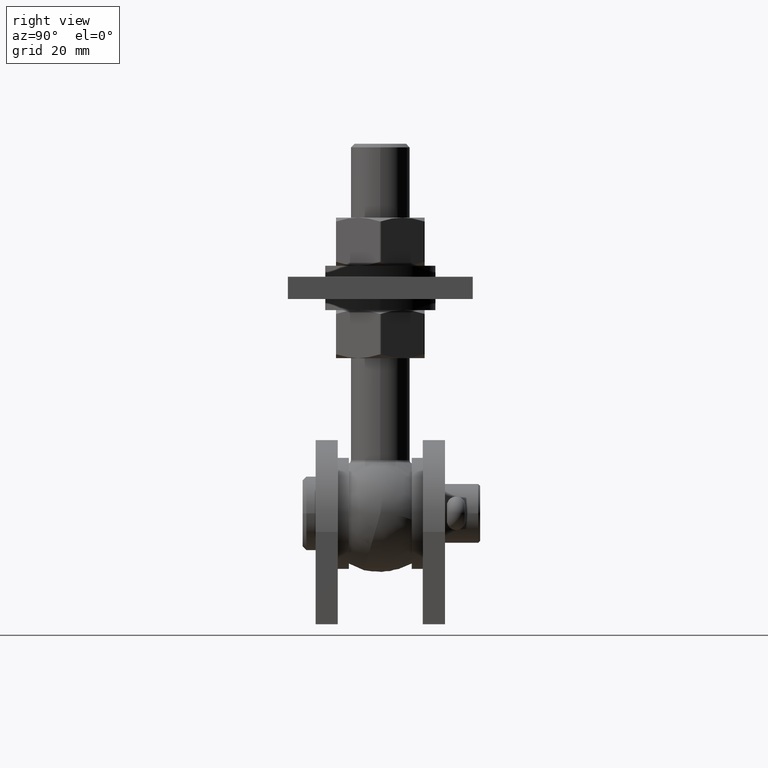
[diagram: clean part render]
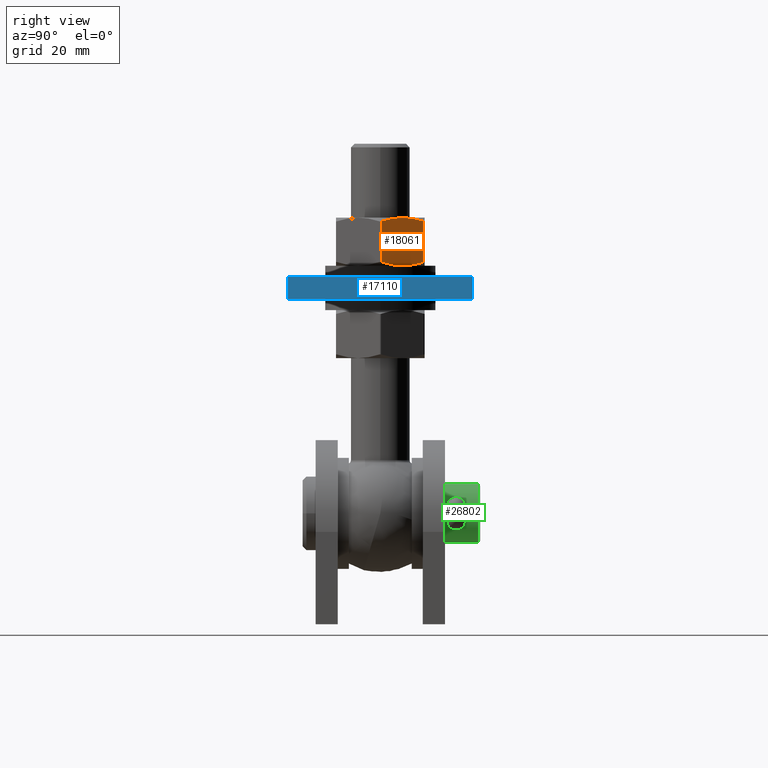
[diagram: same view with three faces highlighted in distinct colors, each labeled with its STEP entity id]
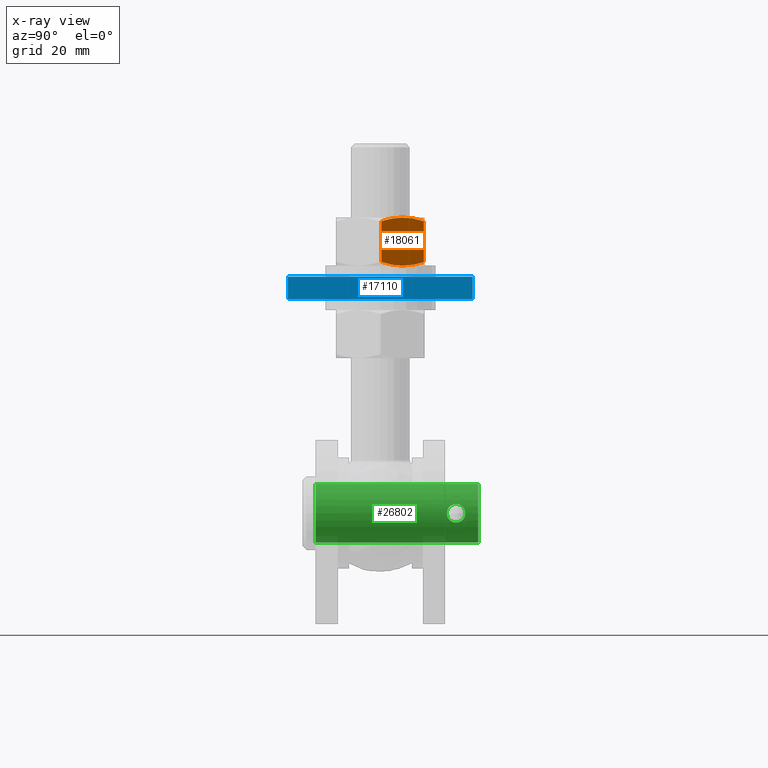
[diagram: x-ray of the same camera — body ghosted, the three highlighted faces saturated]
A machine part, right view with three faces highlighted in distinct colors.
The next image is the same camera in x-ray (body ghosted, the three faces saturated) — at least one of them is partly hidden behind the body in this view.
Their STEP definitions:

[orange] entity #18061 — the highlighted planar face has unit normal (-0.866, -0.5, -0).
#109 = CARTESIAN_POINT ( 'NONE',  ( 12.62147978884749477, -6.062901251027057903, -2.138955739012437185 ) ) ;
#252 = EDGE_CURVE ( 'NONE', #9669, #8957, #5283, .T. ) ;
#952 = CARTESIAN_POINT ( 'NONE',  ( 11.51586903937519679, -6.406434174578384599, -4.053929730492755290 ) ) ;
#1568 = CARTESIAN_POINT ( 'NONE',  ( 13.71206889325361189, 5.510220883462368491, -0.2499999999999974465 ) ) ;
#2060 = EDGE_CURVE ( 'NONE', #18493, #9669, #13935, .T. ) ;
#2565 = CARTESIAN_POINT ( 'NONE',  ( 13.71206889325393341, -5.510220883462202401, -0.2499999999994518274 ) ) ;
#2682 = CARTESIAN_POINT ( 'NONE',  ( 8.161051184807732284, -6.062063013138934586, -9.864644704742827841 ) ) ;
#3300 = CARTESIAN_POINT ( 'NONE',  ( 10.39230484541326227, 6.500000000000005329, -5.999999999999998224 ) ) ;
#3903 = VERTEX_POINT ( 'NONE', #22203 ) ;
#5089 = CARTESIAN_POINT ( 'NONE',  ( 10.95744704231418964, -6.500000000000014211, -5.021145001466503111 ) ) ;
#5283 = B_SPLINE_CURVE_WITH_KNOTS ( 'NONE', 3,
 ( #2565, #26555, #109, #952, #5089, #9470 ),
 .UNSPECIFIED., .F., .F.,
 ( 4, 2, 4 ),
 ( 0.0002976420579474610461, 0.003654043546377305426, 0.007010445034807149915 ),
 .UNSPECIFIED. ) ;
#5368 = CARTESIAN_POINT ( 'NONE',  ( 7.615867869546497637, 5.813954435900760664, -10.80892990621412153 ) ) ;
#5413 = VECTOR ( 'NONE', #18836, 1000.000000000000000 ) ;
#5708 = DIRECTION ( 'NONE',  ( -0.000000000000000000, 1.000000000000000000, 1.372308401475337047E-42 ) ) ;
#6044 = VERTEX_POINT ( 'NONE', #12280 ) ;
#6584 = ORIENTED_EDGE ( 'NONE', *, *, #7476, .T. ) ;
#6816 = CARTESIAN_POINT ( 'NONE',  ( 9.828025114344686841, -6.476788126677502255, -6.977361163892073392 ) ) ;
#6887 = EDGE_CURVE ( 'NONE', #14608, #6044, #12632, .T. ) ;
#7064 = CARTESIAN_POINT ( 'NONE',  ( 10.95658457648184658, 6.476788126677501367, -5.022638836107909732 ) ) ;
#7065 = CARTESIAN_POINT ( 'NONE',  ( 10.39230484541326938, -6.500000000000005329, -5.999999999999998224 ) ) ;
#7466 = CARTESIAN_POINT ( 'NONE',  ( 9.268740651451333079, 6.406434174578382823, -7.946070269507237605 ) ) ;
#7476 = EDGE_CURVE ( 'NONE', #3903, #14608, #26208, .T. ) ;
#8036 = ORIENTED_EDGE ( 'NONE', *, *, #252, .T. ) ;
#8892 = CARTESIAN_POINT ( 'NONE',  ( 8.990347189129836991, -6.320028020092784082, -8.428261890743076634 ) ) ;
#8957 = VERTEX_POINT ( 'NONE', #7065 ) ;
#9229 = CARTESIAN_POINT ( 'NONE',  ( 11.79426250169669466, 6.320028020092783194, -3.571738109256910043 ) ) ;
#9420 = AXIS2_PLACEMENT_3D ( 'NONE', #16699, #12240, #20980 ) ;
#9470 = CARTESIAN_POINT ( 'NONE',  ( 10.39230484541326938, -6.500000000000005329, -5.999999999999998224 ) ) ;
#9669 = VERTEX_POINT ( 'NONE', #15295 ) ;
#11030 = CARTESIAN_POINT ( 'NONE',  ( 10.39230484541326938, -6.500000000000005329, -5.999999999999998224 ) ) ;
#11176 = CARTESIAN_POINT ( 'NONE',  ( 10.39230484541326227, 6.500000000000005329, -5.999999999999998224 ) ) ;
#11396 = ORIENTED_EDGE ( 'NONE', *, *, #13748, .T. ) ;
#11465 = CARTESIAN_POINT ( 'NONE',  ( 12.62355850601880292, 6.062063013138936363, -2.135355295257160613 ) ) ;
#11521 = ORIENTED_EDGE ( 'NONE', *, *, #6887, .T. ) ;
#11880 = B_SPLINE_CURVE_WITH_KNOTS ( 'NONE', 3,
 ( #11176, #17917, #7064, #15538, #9229, #11465, #13347, #13728 ),
 .UNSPECIFIED., .F., .F.,
 ( 4, 2, 2, 4 ),
 ( 0.007010445034807143844, 0.008682192066603519609, 0.01035393909839989537, 0.01369743316199264691 ),
 .UNSPECIFIED. ) ;
#12240 = DIRECTION ( 'NONE',  ( -0.8660254037844382635, 0.000000000000000000, 0.5000000000000008882 ) ) ;
#12280 = CARTESIAN_POINT ( 'NONE',  ( 10.39230484541326227, 6.500000000000005329, -5.999999999999998224 ) ) ;
#12632 = B_SPLINE_CURVE_WITH_KNOTS ( 'NONE', 3,
 ( #20598, #5368, #13951, #7466, #22490, #3300 ),
 .UNSPECIFIED., .F., .F.,
 ( 4, 2, 4 ),
 ( 0.0002976420579474647866, 0.003654043546377304559, 0.007010445034807143844 ),
 .UNSPECIFIED. ) ;
#13134 = CARTESIAN_POINT ( 'NONE',  ( 7.072540797572904658, -5.510220883462424446, -11.74999999999998757 ) ) ;
#13347 = CARTESIAN_POINT ( 'NONE',  ( 13.17005630627476620, 5.813219605597458539, -1.188793338989204251 ) ) ;
#13728 = CARTESIAN_POINT ( 'NONE',  ( 13.71206889325361189, 5.510220883462368491, -0.2499999999999974465 ) ) ;
#13748 = EDGE_CURVE ( 'NONE', #8957, #3903, #27562, .T. ) ;
#13935 = LINE ( 'NONE', #14267, #5413 ) ;
#13951 = CARTESIAN_POINT ( 'NONE',  ( 8.163129901979042202, 6.062901251027059679, -9.861044260987551269 ) ) ;
#14186 = ORIENTED_EDGE ( 'NONE', *, *, #25578, .T. ) ;
#14267 = CARTESIAN_POINT ( 'NONE',  ( 13.71206889325361189, 6.500000000000005329, -0.2499999999999975020 ) ) ;
#14608 = VERTEX_POINT ( 'NONE', #26130 ) ;
#14759 = EDGE_LOOP ( 'NONE', ( #14186, #18653, #8036, #11396, #6584, #11521 ) ) ;
#15295 = CARTESIAN_POINT ( 'NONE',  ( 13.71206889325393341, -5.510220883462202401, -0.2499999999994518274 ) ) ;
#15538 = CARTESIAN_POINT ( 'NONE',  ( 11.51623569666507763, 6.386760395136424684, -4.053294661437721658 ) ) ;
#15686 = CARTESIAN_POINT ( 'NONE',  ( 10.11082040635887580, -6.500000000000014211, -6.487545349982224430 ) ) ;
#16699 = CARTESIAN_POINT ( 'NONE',  ( 13.85640646055101755, 6.500000000000005329, 2.748183035367769064E-17 ) ) ;
#17917 = CARTESIAN_POINT ( 'NONE',  ( 10.67378928446765585, 6.500000000000014211, -5.512454650017772018 ) ) ;
#18061 = ADVANCED_FACE ( 'NONE', ( #21518 ), #27290, .F. ) ;
#18493 = VERTEX_POINT ( 'NONE', #1568 ) ;
#18653 = ORIENTED_EDGE ( 'NONE', *, *, #2060, .T. ) ;
#18836 = DIRECTION ( 'NONE',  ( 0.000000000000000000, -1.000000000000000000, -1.372308401475337047E-42 ) ) ;
#20459 = VECTOR ( 'NONE', #5708, 1000.000000000000000 ) ;
#20598 = CARTESIAN_POINT ( 'NONE',  ( 7.072540797572592908, 5.510220883462202401, -11.75000000000053113 ) ) ;
#20980 = DIRECTION ( 'NONE',  ( 0.5000000000000007772, 0.000000000000000000, 0.8660254037844381525 ) ) ;
#21518 = FACE_OUTER_BOUND ( 'NONE', #14759, .T. ) ;
#21773 = CARTESIAN_POINT ( 'NONE',  ( 7.614553384551769888, -5.813219605597463868, -10.81120666101078598 ) ) ;
#22135 = CARTESIAN_POINT ( 'NONE',  ( 9.268373994161455798, -6.386760395136426460, -7.946705338562263243 ) ) ;
#22203 = CARTESIAN_POINT ( 'NONE',  ( 7.072540797572904658, -5.510220883462424446, -11.74999999999998757 ) ) ;
#22490 = CARTESIAN_POINT ( 'NONE',  ( 9.827162648512342003, 6.500000000000014211, -6.978854998533490672 ) ) ;
#25269 = CARTESIAN_POINT ( 'NONE',  ( 7.072540797572905547, 6.500000000000005329, -11.74999999999998934 ) ) ;
#25578 = EDGE_CURVE ( 'NONE', #6044, #18493, #11880, .T. ) ;
#26130 = CARTESIAN_POINT ( 'NONE',  ( 7.072540797572592908, 5.510220883462202401, -11.75000000000053113 ) ) ;
#26208 = LINE ( 'NONE', #25269, #20459 ) ;
#26555 = CARTESIAN_POINT ( 'NONE',  ( 13.16874182128003135, -5.813954435900757112, -1.191070093785864259 ) ) ;
#27290 = PLANE ( 'NONE',  #9420 ) ;
#27562 = B_SPLINE_CURVE_WITH_KNOTS ( 'NONE', 3,
 ( #11030, #15686, #6816, #22135, #8892, #2682, #21773, #13134 ),
 .UNSPECIFIED., .F., .F.,
 ( 4, 2, 2, 4 ),
 ( 0.007010445034807149915, 0.008682192066603526548, 0.01035393909839990578, 0.01369743316199265905 ),
 .UNSPECIFIED. ) ;

[blue] entity #17110 — the highlighted planar face has unit normal (-1, 0, 0).
#345 = CARTESIAN_POINT ( 'NONE',  ( 70.00000000000002842, 24.99999999999998579, 3.000000000000000000 ) ) ;
#1453 = ORIENTED_EDGE ( 'NONE', *, *, #4550, .T. ) ;
#2414 = PLANE ( 'NONE',  #13272 ) ;
#2944 = CARTESIAN_POINT ( 'NONE',  ( 70.00000000000002842, 24.99999999999998579, 3.000000000000000000 ) ) ;
#3455 = VERTEX_POINT ( 'NONE', #18814 ) ;
#4079 = VERTEX_POINT ( 'NONE', #26837 ) ;
#4550 = EDGE_CURVE ( 'NONE', #4079, #3455, #26658, .T. ) ;
#4625 = DIRECTION ( 'NONE',  ( -0.000000000000000000, -0.000000000000000000, -1.000000000000000000 ) ) ;
#7532 = LINE ( 'NONE', #23115, #23847 ) ;
#9751 = LINE ( 'NONE', #19584, #26388 ) ;
#10411 = EDGE_CURVE ( 'NONE', #3455, #23737, #22723, .T. ) ;
#11431 = VERTEX_POINT ( 'NONE', #2944 ) ;
#12420 = EDGE_CURVE ( 'NONE', #11431, #23737, #9751, .T. ) ;
#13272 = AXIS2_PLACEMENT_3D ( 'NONE', #345, #26410, #15328 ) ;
#13858 = ORIENTED_EDGE ( 'NONE', *, *, #18535, .F. ) ;
#14397 = FACE_OUTER_BOUND ( 'NONE', #19124, .T. ) ;
#14660 = DIRECTION ( 'NONE',  ( -0.000000000000000000, 1.000000000000000000, -0.000000000000000000 ) ) ;
#15328 = DIRECTION ( 'NONE',  ( 0.000000000000000000, 0.000000000000000000, 1.000000000000000000 ) ) ;
#17110 = ADVANCED_FACE ( 'NONE', ( #14397 ), #2414, .F. ) ;
#18535 = EDGE_CURVE ( 'NONE', #4079, #11431, #7532, .T. ) ;
#18814 = CARTESIAN_POINT ( 'NONE',  ( 70.00000000000002842, -25.00000000000001421, -3.000000000000000000 ) ) ;
#19124 = EDGE_LOOP ( 'NONE', ( #22321, #22223, #13858, #1453 ) ) ;
#19584 = CARTESIAN_POINT ( 'NONE',  ( 70.00000000000002842, 24.99999999999998579, 3.000000000000000000 ) ) ;
#19686 = VECTOR ( 'NONE', #14660, 1000.000000000000000 ) ;
#19857 = CARTESIAN_POINT ( 'NONE',  ( 70.00000000000002842, -25.00000000000001421, 3.000000000000000000 ) ) ;
#21941 = DIRECTION ( 'NONE',  ( -0.000000000000000000, -0.000000000000000000, -1.000000000000000000 ) ) ;
#22223 = ORIENTED_EDGE ( 'NONE', *, *, #12420, .F. ) ;
#22272 = VECTOR ( 'NONE', #21941, 1000.000000000000000 ) ;
#22321 = ORIENTED_EDGE ( 'NONE', *, *, #10411, .T. ) ;
#22723 = LINE ( 'NONE', #23111, #19686 ) ;
#23111 = CARTESIAN_POINT ( 'NONE',  ( 70.00000000000002842, 24.99999999999998579, -3.000000000000000000 ) ) ;
#23115 = CARTESIAN_POINT ( 'NONE',  ( 70.00000000000002842, 24.99999999999998579, 3.000000000000000000 ) ) ;
#23737 = VERTEX_POINT ( 'NONE', #26243 ) ;
#23847 = VECTOR ( 'NONE', #25092, 1000.000000000000000 ) ;
#25092 = DIRECTION ( 'NONE',  ( -0.000000000000000000, 1.000000000000000000, -0.000000000000000000 ) ) ;
#26243 = CARTESIAN_POINT ( 'NONE',  ( 70.00000000000002842, 24.99999999999998579, -3.000000000000000000 ) ) ;
#26388 = VECTOR ( 'NONE', #4625, 1000.000000000000000 ) ;
#26410 = DIRECTION ( 'NONE',  ( -1.000000000000000000, 0.000000000000000000, 0.000000000000000000 ) ) ;
#26658 = LINE ( 'NONE', #19857, #22272 ) ;
#26837 = CARTESIAN_POINT ( 'NONE',  ( 70.00000000000002842, -25.00000000000001421, 3.000000000000000000 ) ) ;

[green] entity #26802 — the highlighted cylindrical surface (bore or boss wall) has radius 8 mm, axis along (0, 1, 0).
#313 = AXIS2_PLACEMENT_3D ( 'NONE', #20867, #25019, #1481 ) ;
#719 = CARTESIAN_POINT ( 'NONE',  ( -1.986805928927171561, 15.97387670080328093, -7.749927903428770470 ) ) ;
#805 = CARTESIAN_POINT ( 'NONE',  ( -1.257088732395347908, 15.33297316522367026, -7.901799003784194753 ) ) ;
#973 = CARTESIAN_POINT ( 'NONE',  ( -0.3294158532848766030, 19.98361924732722628, -7.994837621757268309 ) ) ;
#1193 = CYLINDRICAL_SURFACE ( 'NONE', #8390, 8.000000000000000000 ) ;
#1230 = EDGE_LOOP ( 'NONE', ( #11493 ) ) ;
#1481 = DIRECTION ( 'NONE',  ( 0.000000000000000000, 0.000000000000000000, 1.000000000000000000 ) ) ;
#1762 = CARTESIAN_POINT ( 'NONE',  ( -2.483628429911565849, 17.82934057578778209, 7.604783344344083318 ) ) ;
#1860 = CARTESIAN_POINT ( 'NONE',  ( 1.109816439791320830, 19.74609997338682277, 7.924100809522563793 ) ) ;
#1968 = CARTESIAN_POINT ( 'NONE',  ( -0.3307102782286334697, 19.98350243605358401, 7.994800231452924066 ) ) ;
#2051 = CARTESIAN_POINT ( 'NONE',  ( -2.183009610834927727, 16.23893426180372757, 7.697500615899231846 ) ) ;
#2137 = CARTESIAN_POINT ( 'NONE',  ( 2.483281963866850628, 17.83171832081140806, 7.604896650065444241 ) ) ;
#2704 = CARTESIAN_POINT ( 'NONE',  ( 0.6498544130699831500, 15.08034409068491755, -7.975199005458871504 ) ) ;
#3129 = CARTESIAN_POINT ( 'NONE',  ( 2.419433607445526935, 18.15047096790310022, -7.625449243972107105 ) ) ;
#3319 = CARTESIAN_POINT ( 'NONE',  ( 1.882127203182996089, 19.15342788087603054, -7.776335001858096341 ) ) ;
#3398 = CARTESIAN_POINT ( 'NONE',  ( 2.500000000000000444, 17.50000000000000000, -7.599342076785334577 ) ) ;
#3414 = CARTESIAN_POINT ( 'NONE',  ( -2.500069680191711718, 17.33724957444216130, -7.599319153687524420 ) ) ;
#3488 = CARTESIAN_POINT ( 'NONE',  ( 1.986900504899591136, 19.02603993390240333, -7.749905930963728373 ) ) ;
#3640 = CARTESIAN_POINT ( 'NONE',  ( -1.255410537178604846, 15.33192918265424787, 7.902080341921111639 ) ) ;
#3729 = CARTESIAN_POINT ( 'NONE',  ( -1.526387645314500885, 15.51336278044615646, 7.854238989441713947 ) ) ;
#3816 = CARTESIAN_POINT ( 'NONE',  ( 1.997603995530615961, 15.96226738855686555, 7.750145230234156024 ) ) ;
#3920 = CARTESIAN_POINT ( 'NONE',  ( 1.653987708693678726, 15.61835564298028523, 7.828034099482484187 ) ) ;
#4099 = CARTESIAN_POINT ( 'NONE',  ( 2.483937512605597142, 17.17275755852223895, 7.604682343639957764 ) ) ;
#4107 = CARTESIAN_POINT ( 'NONE',  ( -2.499929864535031854, 17.66488413883391928, -7.599365149657032248 ) ) ;
#4200 = CARTESIAN_POINT ( 'NONE',  ( 0.6518825253712040579, 19.91917964970361155, 7.975053539561216098 ) ) ;
#4957 = CARTESIAN_POINT ( 'NONE',  ( -0.1652675853009770990, 15.00003295635618805, -7.999989701138875198 ) ) ;
#4966 = CARTESIAN_POINT ( 'NONE',  ( -1.652961987314623293, 19.38262739202769325, -7.828261419731129322 ) ) ;
#5046 = CARTESIAN_POINT ( 'NONE',  ( -1.113149310714817819, 15.25543002194366693, -7.923661774846487482 ) ) ;
#5123 = CARTESIAN_POINT ( 'NONE',  ( 2.500000000000000888, 17.33370939182614379, -7.599342076785335465 ) ) ;
#5364 = CARTESIAN_POINT ( 'NONE',  ( -2.370871776496314087, 18.30965859507078264, -7.640892879727226195 ) ) ;
#6010 = CARTESIAN_POINT ( 'NONE',  ( 2.499964080456524407, 17.66532639632386292, 7.599353893447284847 ) ) ;
#6185 = CARTESIAN_POINT ( 'NONE',  ( 1.882603535671692141, 19.15300575582690357, 7.776233538463531936 ) ) ;
#6293 = CARTESIAN_POINT ( 'NONE',  ( -1.110972981611749510, 19.74551640307962685, 7.923935220853760342 ) ) ;
#6888 = CARTESIAN_POINT ( 'NONE',  ( -2.167110237998277622, 18.75699637097954664, -7.701455134621489229 ) ) ;
#6943 = CARTESIAN_POINT ( 'NONE',  ( 2.500000000000000444, 17.50000000000000000, -7.599342076785334577 ) ) ;
#7132 = CARTESIAN_POINT ( 'NONE',  ( 2.244831491128288281, 16.38760192801666093, -7.678869690883504795 ) ) ;
#7218 = CARTESIAN_POINT ( 'NONE',  ( -1.526411084467720558, 15.51345863748821863, -7.854219807118614227 ) ) ;
#7318 = CARTESIAN_POINT ( 'NONE',  ( -0.8086627177055204507, 15.12865852662890909, -7.960501361038853751 ) ) ;
#7456 = VERTEX_POINT ( 'NONE', #26772 ) ;
#7579 = CARTESIAN_POINT ( 'NONE',  ( -1.256011559902790786, 19.66766706706732393, -7.901973980229364258 ) ) ;
#7857 = CARTESIAN_POINT ( 'NONE',  ( 1.261368413420339785, 19.68285698600946887, -7.905728187793180872 ) ) ;
#7921 = CARTESIAN_POINT ( 'NONE',  ( 6.491660507756957799E-15, 15.00000000000000000, 7.999999999999998224 ) ) ;
#8028 = CIRCLE ( 'NONE', #313, 8.000000000000000000 ) ;
#8126 = AXIS2_PLACEMENT_3D ( 'NONE', #19204, #14555, #12472 ) ;
#8296 = CARTESIAN_POINT ( 'NONE',  ( -1.527364626506923617, 19.48584607336621843, 7.854040797498008430 ) ) ;
#8390 = AXIS2_PLACEMENT_3D ( 'NONE', #21278, #21097, #10160 ) ;
#8479 = CARTESIAN_POINT ( 'NONE',  ( 2.500035801144603997, 17.33576171612707029, 7.599330299073756123 ) ) ;
#9155 = B_SPLINE_CURVE_WITH_KNOTS ( 'NONE', 3,
 ( #7921, #22934, #27486, #14306, #14594, #18878, #3640, #3729, #18596, #10700, #2051, #12795, #19248, #25575, #23408, #12604, #1762, #25676, #27947, #12978, #25774, #10406, #17255, #19142, #8296, #14964, #6293, #23490, #16965, #1968, #17151, #23789, #27773, #4200, #21517, #1860, #25857, #28155, #23590, #6185, #25949, #19055, #15152, #12897, #10797, #2137, #6010, #8479, #4099, #15057, #12693, #10512, #3816, #3920, #21245, #19344, #23696, #14767, #19434, #28048, #17050, #10595 ),
 .UNSPECIFIED., .T., .F.,
 ( 4, 2, 2, 2, 2, 2, 2, 2, 2, 2, 2, 2, 2, 2, 2, 2, 2, 2, 2, 2, 2, 2, 2, 2, 2, 2, 2, 2, 2, 2, 4 ),
 ( 0.000000000000000000, 0.0004915419920949418587, 0.0009830839841898837174, 0.001474625976284825793, 0.001966167968379767435, 0.002949251952569652020, 0.003440793944664589325, 0.003932335936759526196, 0.004423877928854464368, 0.004915419920949400806, 0.005406961913044338978, 0.005898503905139276283, 0.006390045897234213589, 0.006881587889329151761, 0.007373129881424088199, 0.007864671873519026371, 0.008356213865613965411, 0.008847755857708904451, 0.009339297849803840021, 0.009830839841898779061, 0.01032238183399371810, 0.01081392382608865714, 0.01130546581818359618, 0.01179700781027853349, 0.01228854980237347079, 0.01278009179446840983, 0.01376317577865828617, 0.01425471777075322521, 0.01474625976284816078, 0.01523780175494309982, 0.01572934374703803886 ),
 .UNSPECIFIED. ) ;
#9216 = CARTESIAN_POINT ( 'NONE',  ( 0.8092524579111949334, 15.12898415107189010, -7.960409877899648379 ) ) ;
#9321 = CARTESIAN_POINT ( 'NONE',  ( 2.419263071386917208, 16.84882918564273879, -7.625503725031471447 ) ) ;
#9512 = CARTESIAN_POINT ( 'NONE',  ( 1.261085162316974762, 15.31686303695841112, -7.905803189592722546 ) ) ;
#9959 = CARTESIAN_POINT ( 'NONE',  ( 2.245068531183318949, 18.61195872389447814, -7.678800899694542714 ) ) ;
#10057 = CARTESIAN_POINT ( 'NONE',  ( -1.525758259588304799, 19.48705996023163323, -7.854350358631152496 ) ) ;
#10160 = DIRECTION ( 'NONE',  ( 0.000000000000000000, 0.000000000000000000, 1.000000000000000000 ) ) ;
#10406 = CARTESIAN_POINT ( 'NONE',  ( -1.987350670656298890, 19.02537408350266546, 7.749785271947251530 ) ) ;
#10512 = CARTESIAN_POINT ( 'NONE',  ( 2.183290530164128551, 16.23920914785506753, 7.697424038860504858 ) ) ;
#10595 = CARTESIAN_POINT ( 'NONE',  ( 6.491660507756957799E-15, 15.00000000000000000, 7.999999999999998224 ) ) ;
#10700 = CARTESIAN_POINT ( 'NONE',  ( -1.997269418168317046, 15.96187269788423535, 7.750228188135362295 ) ) ;
#10797 = CARTESIAN_POINT ( 'NONE',  ( 2.418935046798342370, 18.15228796999413063, 7.625607884596072417 ) ) ;
#11060 = FACE_BOUND ( 'NONE', #1230, .T. ) ;
#11493 = ORIENTED_EDGE ( 'NONE', *, *, #21659, .T. ) ;
#11612 = CARTESIAN_POINT ( 'NONE',  ( 6.429395695523604744E-15, 15.00000000000000178, 8.000000000000000000 ) ) ;
#11638 = CARTESIAN_POINT ( 'NONE',  ( -0.3316789273069286059, 15.01670941834076167, -7.994735386343381656 ) ) ;
#11810 = CARTESIAN_POINT ( 'NONE',  ( 0.1658767875276432047, 19.99989149796645194, -7.999966093121115840 ) ) ;
#11936 = EDGE_CURVE ( 'NONE', #18361, #18361, #9155, .T. ) ;
#12340 = ORIENTED_EDGE ( 'NONE', *, *, #11936, .T. ) ;
#12421 = CARTESIAN_POINT ( 'NONE',  ( -2.418620428593999616, 18.15376791078418961, -7.625708908535037800 ) ) ;
#12455 = CARTESIAN_POINT ( 'NONE',  ( -1.883424207323222577, 19.15205401969457100, -7.776031985686971737 ) ) ;
#12472 = DIRECTION ( 'NONE',  ( 0.000000000000000000, 0.000000000000000000, -1.000000000000000000 ) ) ;
#12604 = CARTESIAN_POINT ( 'NONE',  ( -2.500111254538178063, 17.66250420245483710, 7.599305476738777543 ) ) ;
#12693 = CARTESIAN_POINT ( 'NONE',  ( 2.371066238120643543, 16.69090626474208605, 7.640832316425184345 ) ) ;
#12795 = CARTESIAN_POINT ( 'NONE',  ( -2.370526604626755685, 16.68940882313012253, 7.640998971989749755 ) ) ;
#12897 = CARTESIAN_POINT ( 'NONE',  ( 2.371378835275271602, 18.30853811571079603, 7.640742066392084197 ) ) ;
#12978 = CARTESIAN_POINT ( 'NONE',  ( -2.245511810191562319, 18.61120024199157541, 7.678673510907105815 ) ) ;
#13010 = EDGE_CURVE ( 'NONE', #7456, #7456, #8028, .T. ) ;
#13400 = CARTESIAN_POINT ( 'NONE',  ( 6.429395695523604744E-15, 23.50000000000000000, -8.000000000000000000 ) ) ;
#13907 = CARTESIAN_POINT ( 'NONE',  ( 2.168082104478550320, 16.24463362887924944, -7.701183130903428875 ) ) ;
#14306 = CARTESIAN_POINT ( 'NONE',  ( -0.6505357061275161001, 15.08058172092909288, 7.975127128617547356 ) ) ;
#14555 = DIRECTION ( 'NONE',  ( 0.000000000000000000, -1.000000000000000000, 0.000000000000000000 ) ) ;
#14594 = CARTESIAN_POINT ( 'NONE',  ( -0.8098929222499625658, 15.12915981483501859, 7.960355258931562261 ) ) ;
#14767 = CARTESIAN_POINT ( 'NONE',  ( 0.8108707063266439308, 15.12951230278562953, 7.960250676713092055 ) ) ;
#14964 = CARTESIAN_POINT ( 'NONE',  ( -1.257326902735218521, 19.66692325407867870, 7.901767435879524015 ) ) ;
#15057 = CARTESIAN_POINT ( 'NONE',  ( 2.419684271339320070, 16.85026066067482375, 7.625369967498738077 ) ) ;
#15152 = CARTESIAN_POINT ( 'NONE',  ( 2.244688738360375524, 18.61289888706332007, 7.678915898315542776 ) ) ;
#15702 = CARTESIAN_POINT ( 'NONE',  ( -2.419206144105619849, 16.84821702004477828, -7.625522944453970275 ) ) ;
#15934 = EDGE_CURVE ( 'NONE', #23776, #23776, #16476, .T. ) ;
#16089 = CARTESIAN_POINT ( 'NONE',  ( -2.167784396967589622, 16.24414931945111817, -7.701265552870378173 ) ) ;
#16163 = CARTESIAN_POINT ( 'NONE',  ( -0.8073563032723123367, 19.87176855192195291, -7.960630050969301763 ) ) ;
#16164 = FACE_BOUND ( 'NONE', #27316, .T. ) ;
#16476 = CIRCLE ( 'NONE', #8126, 8.000000000000000000 ) ;
#16965 = CARTESIAN_POINT ( 'NONE',  ( -0.6538252794806765911, 19.91860830684139572, 7.974880095203803698 ) ) ;
#17050 = CARTESIAN_POINT ( 'NONE',  ( 0.1662818188735215585, 15.00000000000000178, 7.999999999999998224 ) ) ;
#17151 = CARTESIAN_POINT ( 'NONE',  ( -0.1648743019140260502, 19.99993134684784835, 7.999978545891640813 ) ) ;
#17255 = CARTESIAN_POINT ( 'NONE',  ( -1.882947943346744868, 19.15259456379597225, 7.776147547218707601 ) ) ;
#17726 = ORIENTED_EDGE ( 'NONE', *, *, #15934, .T. ) ;
#17995 = CARTESIAN_POINT ( 'NONE',  ( -0.6523482450986163306, 15.08107776253686083, -7.974976274296203371 ) ) ;
#18081 = CARTESIAN_POINT ( 'NONE',  ( -2.246208808110096822, 16.39041191511268991, -7.678464746113566441 ) ) ;
#18178 = CARTESIAN_POINT ( 'NONE',  ( 2.483566862166265210, 17.17022298564519645, -7.604803515554816151 ) ) ;
#18349 = CARTESIAN_POINT ( 'NONE',  ( -1.111446275835199948, 19.74539471814012259, -7.923896906495007109 ) ) ;
#18361 = VERTEX_POINT ( 'NONE', #11612 ) ;
#18455 = CARTESIAN_POINT ( 'NONE',  ( -2.484005613850981398, 17.17274546451652384, -7.604661376710284415 ) ) ;
#18531 = CARTESIAN_POINT ( 'NONE',  ( 0.6520195330513405274, 19.91909759718111417, -7.975028932232793188 ) ) ;
#18596 = CARTESIAN_POINT ( 'NONE',  ( -1.653808793622568274, 15.61820653213410814, 7.828071090528386122 ) ) ;
#18638 = CARTESIAN_POINT ( 'NONE',  ( 2.483575869861699648, 17.82957906420521965, -7.604800198024428859 ) ) ;
#18724 = CARTESIAN_POINT ( 'NONE',  ( 1.538555681993293955, 19.49693582227488875, -7.854170987045367980 ) ) ;
#18878 = CARTESIAN_POINT ( 'NONE',  ( -1.112202950067893159, 15.25504692098832571, 7.923773532337370362 ) ) ;
#19055 = CARTESIAN_POINT ( 'NONE',  ( 2.167209757069924692, 18.75676653399210636, 7.701423514203392884 ) ) ;
#19142 = CARTESIAN_POINT ( 'NONE',  ( -1.652453983936032600, 19.38307131586026344, 7.828368889139241560 ) ) ;
#19204 = CARTESIAN_POINT ( 'NONE',  ( 6.429395695523604744E-15, 23.50000000000000000, 0.000000000000000000 ) ) ;
#19219 = FACE_OUTER_BOUND ( 'NONE', #23728, .T. ) ;
#19248 = CARTESIAN_POINT ( 'NONE',  ( -2.419106915738808095, 16.84802120283510618, 7.625554068768064298 ) ) ;
#19344 = CARTESIAN_POINT ( 'NONE',  ( 1.255679767044690420, 15.33209535582256500, 7.902035454232125389 ) ) ;
#19372 = VERTEX_POINT ( 'NONE', #24486 ) ;
#19434 = CARTESIAN_POINT ( 'NONE',  ( 0.6512404247482003194, 15.08075352955558301, 7.975074711992215626 ) ) ;
#19844 = B_SPLINE_CURVE_WITH_KNOTS ( 'NONE', 3,
 ( #3398, #22973, #18638, #3129, #25135, #9959, #20623, #3488, #3319, #18724, #7857, #23076, #18531, #24766, #11810, #26953, #973, #20519, #16163, #18349, #7579, #10057, #4966, #12455, #28094, #6888, #26921, #5364, #12421, #27956, #4107, #3414, #18455, #15702, #20364, #18081, #16089, #719, #22527, #24602, #7218, #805, #5046, #7318, #17995, #11638, #4957, #24329, #20172, #2704, #9216, #9512, #24427, #26883, #22159, #13907, #7132, #24512, #9321, #18178, #5123, #6943 ),
 .UNSPECIFIED., .T., .F.,
 ( 4, 2, 2, 2, 2, 2, 2, 2, 2, 2, 2, 2, 2, 2, 2, 2, 2, 2, 2, 2, 2, 2, 2, 2, 2, 2, 2, 2, 2, 2, 4 ),
 ( 0.000000000000000000, 0.0004915308186291239122, 0.0009830616372582478245, 0.001474592455887371954, 0.001966123274516495649, 0.002949184911774744774, 0.003440715730403866735, 0.003932246549032988696, 0.004423777367662111090, 0.004915308186291232617, 0.005406839004920355012, 0.005898369823549477406, 0.006389900642178599800, 0.006881431460807722195, 0.007372962279436843722, 0.007864493098065965249, 0.008356023916695090245, 0.008847554735324211772, 0.009339085553953333299, 0.009830616372582454826, 0.01032214719121157809, 0.01081367800984069961, 0.01130520882846982288, 0.01179673964709894440, 0.01228827046572806593, 0.01277980128435718919, 0.01376286292161543398, 0.01425439374024455551, 0.01474592455887367703, 0.01523745537750279856, 0.01572898619613192009 ),
 .UNSPECIFIED. ) ;
#20172 = CARTESIAN_POINT ( 'NONE',  ( 0.3272862648415437725, 15.01606578619400700, -7.994935499158506431 ) ) ;
#20364 = CARTESIAN_POINT ( 'NONE',  ( -2.371409616453032942, 16.69188109863130265, -7.640725835804758503 ) ) ;
#20519 = CARTESIAN_POINT ( 'NONE',  ( -0.6509496881666368973, 19.91932715306660739, -7.975099241146564211 ) ) ;
#20623 = CARTESIAN_POINT ( 'NONE',  ( 2.168240131565550399, 18.75511203806820859, -7.701139544705423390 ) ) ;
#20867 = CARTESIAN_POINT ( 'NONE',  ( 6.429395695523604744E-15, -20.49999999999999645, 0.000000000000000000 ) ) ;
#21097 = DIRECTION ( 'NONE',  ( -0.000000000000000000, 1.000000000000000000, -0.000000000000000000 ) ) ;
#21245 = CARTESIAN_POINT ( 'NONE',  ( 1.526417159845881777, 15.51339664811028030, 7.854231130507618452 ) ) ;
#21278 = CARTESIAN_POINT ( 'NONE',  ( 6.429395695523604744E-15, 24.00000000000000000, 0.000000000000000000 ) ) ;
#21517 = CARTESIAN_POINT ( 'NONE',  ( 0.8082559432231083418, 19.87136668415576324, 7.960514336382529699 ) ) ;
#21659 = EDGE_CURVE ( 'NONE', #19372, #19372, #19844, .T. ) ;
#22159 = CARTESIAN_POINT ( 'NONE',  ( 1.986885237063159337, 15.97395550777786966, -7.749908946704613832 ) ) ;
#22527 = CARTESIAN_POINT ( 'NONE',  ( -1.884030816674364006, 15.84861947866884258, -7.775886587350431256 ) ) ;
#22645 = ORIENTED_EDGE ( 'NONE', *, *, #13010, .T. ) ;
#22924 = FACE_OUTER_BOUND ( 'NONE', #27443, .T. ) ;
#22934 = CARTESIAN_POINT ( 'NONE',  ( -0.1662818188735097624, 14.99999999999999822, 7.999999999999998224 ) ) ;
#22973 = CARTESIAN_POINT ( 'NONE',  ( 2.499999999999999556, 17.66629060817386332, -7.599342076785333688 ) ) ;
#23076 = CARTESIAN_POINT ( 'NONE',  ( 0.8107013060273078331, 19.87049406587357581, -7.960255052811825216 ) ) ;
#23408 = CARTESIAN_POINT ( 'NONE',  ( -2.499887585863239448, 17.33409050982296051, 7.599379058311758861 ) ) ;
#23490 = CARTESIAN_POINT ( 'NONE',  ( -0.8097837395862769183, 19.87083427878723541, 7.960355560228430605 ) ) ;
#23590 = CARTESIAN_POINT ( 'NONE',  ( 1.651772252154888543, 19.38368588897715128, 7.828515347386106882 ) ) ;
#23696 = CARTESIAN_POINT ( 'NONE',  ( 1.112653709502699817, 15.25528956260429325, 7.923705185152949859 ) ) ;
#23728 = EDGE_LOOP ( 'NONE', ( #22645 ) ) ;
#23776 = VERTEX_POINT ( 'NONE', #13400 ) ;
#23789 = CARTESIAN_POINT ( 'NONE',  ( 0.1627857029738109806, 20.00006821692757697, 8.000021317788185371 ) ) ;
#24329 = CARTESIAN_POINT ( 'NONE',  ( 0.1642690164509499895, 14.99996714335778769, -8.000010267700506716 ) ) ;
#24427 = CARTESIAN_POINT ( 'NONE',  ( 1.538160071631049064, 15.50272590118589378, -7.854253789586561396 ) ) ;
#24486 = CARTESIAN_POINT ( 'NONE',  ( 2.500000000000000000, 17.50000000000000000, -7.599342076785333688 ) ) ;
#24512 = CARTESIAN_POINT ( 'NONE',  ( 2.370524385405788248, 16.68925217711670328, -7.641002701957846810 ) ) ;
#24602 = CARTESIAN_POINT ( 'NONE',  ( -1.653372748032080120, 15.61771726340714750, -7.828176217586046981 ) ) ;
#24766 = CARTESIAN_POINT ( 'NONE',  ( 0.3288017998479576542, 19.98375764368921637, -7.994879943929573685 ) ) ;
#25019 = DIRECTION ( 'NONE',  ( -0.000000000000000000, 1.000000000000000000, -0.000000000000000000 ) ) ;
#25135 = CARTESIAN_POINT ( 'NONE',  ( 2.370873907629984956, 18.30977887566544027, -7.640894769657458063 ) ) ;
#25575 = CARTESIAN_POINT ( 'NONE',  ( -2.483755149912906912, 17.17119158008190638, 7.604742828048927983 ) ) ;
#25676 = CARTESIAN_POINT ( 'NONE',  ( -2.419352377185110203, 18.15085287718038742, 7.625475327301699302 ) ) ;
#25774 = CARTESIAN_POINT ( 'NONE',  ( -2.167853979604610792, 18.75568224718361066, 7.701242988801288547 ) ) ;
#25857 = CARTESIAN_POINT ( 'NONE',  ( 1.256153907057167007, 19.66761400604866949, 7.901956778798767012 ) ) ;
#25949 = CARTESIAN_POINT ( 'NONE',  ( 1.986828614550085303, 19.02603155554091074, 7.749918343612985261 ) ) ;
#26772 = CARTESIAN_POINT ( 'NONE',  ( 6.429395695523604744E-15, -20.49999999999999645, 8.000000000000000000 ) ) ;
#26802 = ADVANCED_FACE ( 'NONE', ( #16164, #11060, #22924, #19219 ), #1193, .T. ) ;
#26883 = CARTESIAN_POINT ( 'NONE',  ( 1.881993817929030754, 15.84641016959605686, -7.776368626716177346 ) ) ;
#26921 = CARTESIAN_POINT ( 'NONE',  ( -2.245637294707696352, 18.61071740860430168, -7.678632047485469236 ) ) ;
#26953 = CARTESIAN_POINT ( 'NONE',  ( -0.1625899449715810796, 20.00010742170004008, -8.000033569274700440 ) ) ;
#27316 = EDGE_LOOP ( 'NONE', ( #12340 ) ) ;
#27443 = EDGE_LOOP ( 'NONE', ( #17726 ) ) ;
#27486 = CARTESIAN_POINT ( 'NONE',  ( -0.3295844758920751794, 15.01642282437202702, 7.994824794566122605 ) ) ;
#27773 = CARTESIAN_POINT ( 'NONE',  ( 0.3273472357151259726, 19.98399371812694270, 7.994953006304782228 ) ) ;
#27947 = CARTESIAN_POINT ( 'NONE',  ( -2.371811362123611655, 18.30721752335616159, 7.640606064921654728 ) ) ;
#27956 = CARTESIAN_POINT ( 'NONE',  ( -2.483493829338566439, 17.83075014500466082, -7.604828698594075398 ) ) ;
#28048 = CARTESIAN_POINT ( 'NONE',  ( 0.3297858058797966674, 15.01643222403248323, 7.994821578679795593 ) ) ;
#28094 = CARTESIAN_POINT ( 'NONE',  ( -1.986151636203901782, 19.02696049009043477, -7.750095460846221584 ) ) ;
#28155 = CARTESIAN_POINT ( 'NONE',  ( 1.526513742508512017, 19.48651174458294122, 7.854209022310993937 ) ) ;